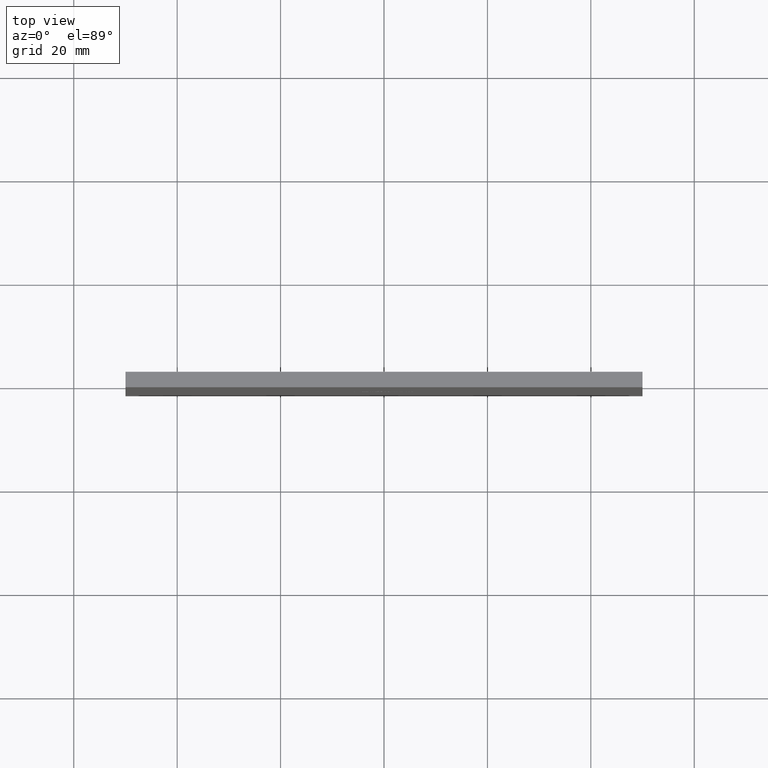
[diagram: clean part render]
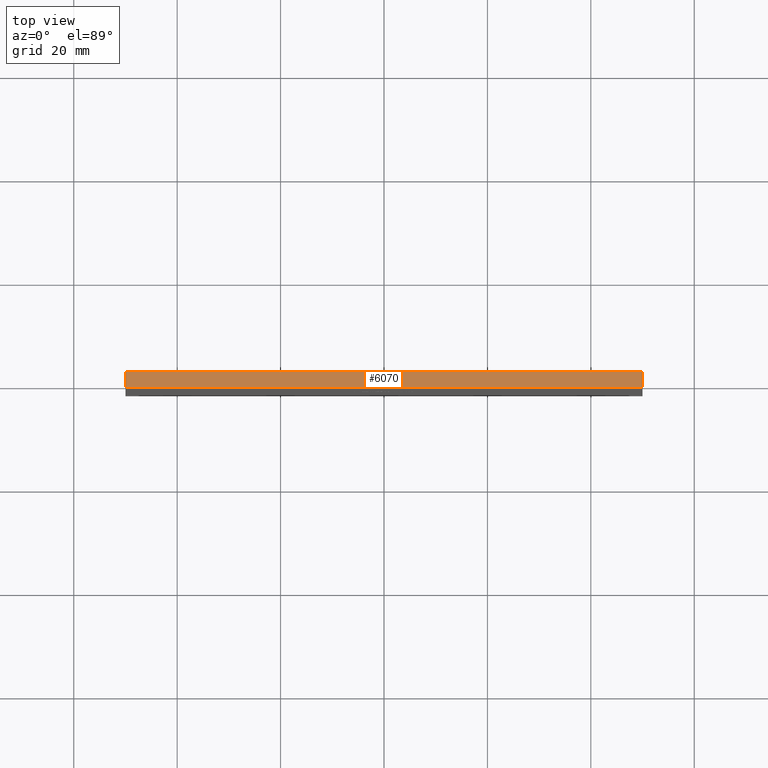
[diagram: same view with one face highlighted and labeled with its STEP entity id]
A machine part, top view. The second image highlights one B-rep face of the part: STEP entity #6070.
In plain terms, the highlighted planar face has unit normal (0, 0, -1).
Its self-contained STEP definition (entity closure, byte-faithful):
#496 = CARTESIAN_POINT ( 'NONE',  ( -50.00000000000000711, 1.500000000000000000, 49.99999999999999289 ) ) ;
#859 = CARTESIAN_POINT ( 'NONE',  ( -50.00000000000000711, 1.500000000000000000, 49.99999999999999289 ) ) ;
#2263 = CARTESIAN_POINT ( 'NONE',  ( -50.00000000000000711, 1.500000000000000000, 49.99999999999999289 ) ) ;
#2785 = CARTESIAN_POINT ( 'NONE',  ( -50.00000000000000711, -1.500000000000000000, 49.99999999999999289 ) ) ;
#2980 = DIRECTION ( 'NONE',  ( -0.000000000000000000, -1.000000000000000000, -0.000000000000000000 ) ) ;
#3308 = VECTOR ( 'NONE', #15602, 1000.000000000000000 ) ;
#3354 = EDGE_CURVE ( 'NONE', #3384, #4372, #16464, .T. ) ;
#3384 = VERTEX_POINT ( 'NONE', #11429 ) ;
#3822 = ORIENTED_EDGE ( 'NONE', *, *, #3841, .T. ) ;
#3841 = EDGE_CURVE ( 'NONE', #13358, #4372, #7828, .T. ) ;
#4372 = VERTEX_POINT ( 'NONE', #4563 ) ;
#4563 = CARTESIAN_POINT ( 'NONE',  ( 49.99999999999999289, -1.500000000000000000, 49.99999999999999289 ) ) ;
#4702 = PLANE ( 'NONE',  #8997 ) ;
#5318 = CARTESIAN_POINT ( 'NONE',  ( -50.00000000000000711, 1.500000000000000000, 49.99999999999999289 ) ) ;
#5466 = CARTESIAN_POINT ( 'NONE',  ( 49.99999999999999289, 1.500000000000000000, 49.99999999999999289 ) ) ;
#5985 = DIRECTION ( 'NONE',  ( 0.000000000000000000, 0.000000000000000000, -1.000000000000000000 ) ) ;
#6070 = ADVANCED_FACE ( 'NONE', ( #16026 ), #4702, .F. ) ;
#6652 = LINE ( 'NONE', #5318, #3308 ) ;
#6909 = ORIENTED_EDGE ( 'NONE', *, *, #13803, .F. ) ;
#7828 = LINE ( 'NONE', #2785, #16452 ) ;
#8359 = DIRECTION ( 'NONE',  ( -1.000000000000000000, 0.000000000000000000, -0.000000000000000000 ) ) ;
#8997 = AXIS2_PLACEMENT_3D ( 'NONE', #859, #5985, #8359 ) ;
#9318 = VERTEX_POINT ( 'NONE', #496 ) ;
#9667 = VECTOR ( 'NONE', #2980, 1000.000000000000000 ) ;
#10116 = LINE ( 'NONE', #2263, #10311 ) ;
#10311 = VECTOR ( 'NONE', #14861, 1000.000000000000000 ) ;
#11429 = CARTESIAN_POINT ( 'NONE',  ( 49.99999999999999289, 1.500000000000000000, 49.99999999999999289 ) ) ;
#12978 = DIRECTION ( 'NONE',  ( 1.000000000000000000, 0.000000000000000000, 0.000000000000000000 ) ) ;
#13358 = VERTEX_POINT ( 'NONE', #15995 ) ;
#13376 = EDGE_LOOP ( 'NONE', ( #3822, #15925, #6909, #13424 ) ) ;
#13424 = ORIENTED_EDGE ( 'NONE', *, *, #16488, .T. ) ;
#13803 = EDGE_CURVE ( 'NONE', #9318, #3384, #10116, .T. ) ;
#14861 = DIRECTION ( 'NONE',  ( 1.000000000000000000, 0.000000000000000000, 0.000000000000000000 ) ) ;
#15602 = DIRECTION ( 'NONE',  ( -0.000000000000000000, -1.000000000000000000, -0.000000000000000000 ) ) ;
#15925 = ORIENTED_EDGE ( 'NONE', *, *, #3354, .F. ) ;
#15995 = CARTESIAN_POINT ( 'NONE',  ( -50.00000000000000711, -1.500000000000000000, 49.99999999999999289 ) ) ;
#16026 = FACE_OUTER_BOUND ( 'NONE', #13376, .T. ) ;
#16452 = VECTOR ( 'NONE', #12978, 1000.000000000000000 ) ;
#16464 = LINE ( 'NONE', #5466, #9667 ) ;
#16488 = EDGE_CURVE ( 'NONE', #9318, #13358, #6652, .T. ) ;